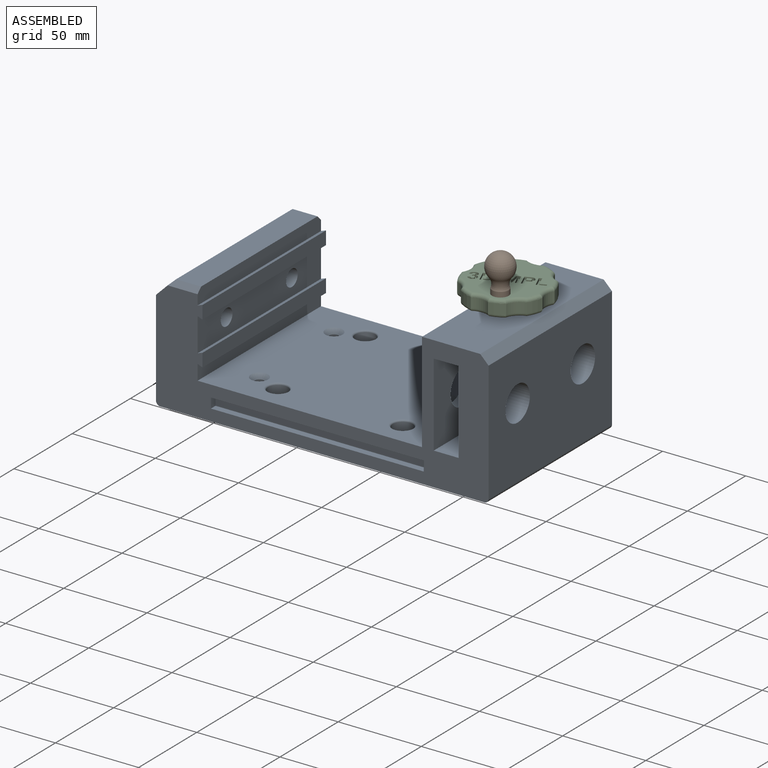
[diagram: assembled view]
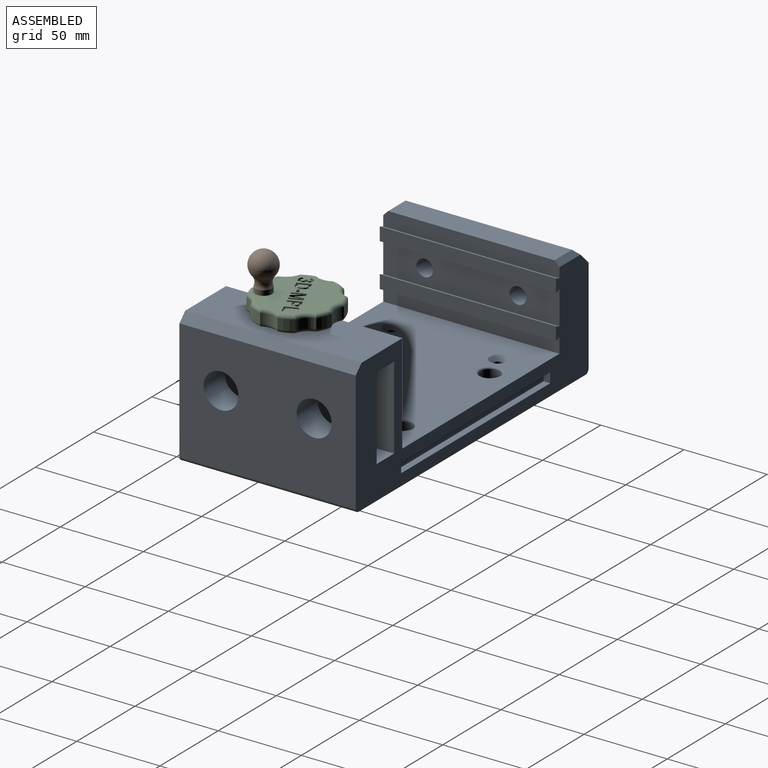
[diagram: assembled view, second angle]
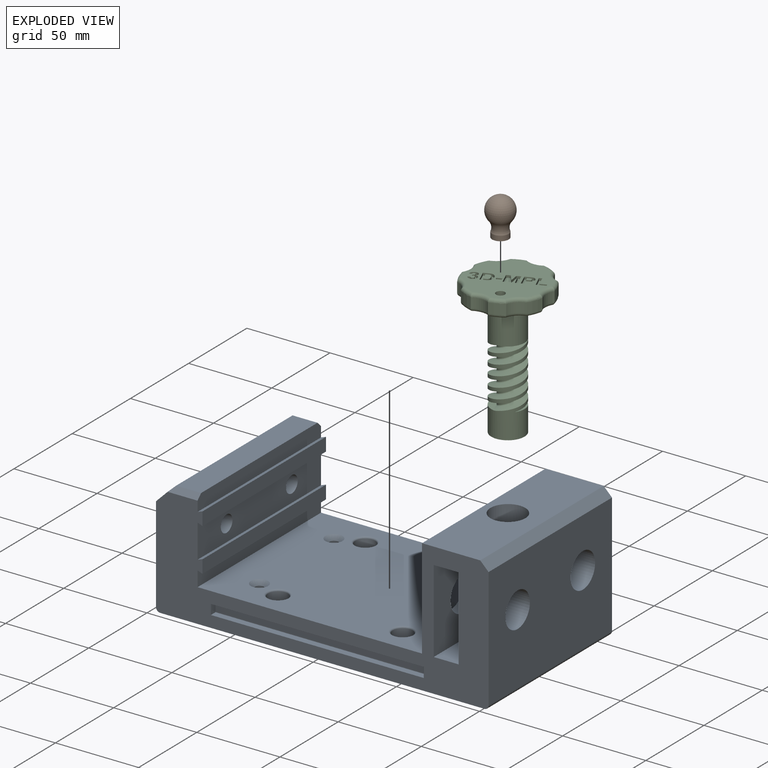
[diagram: exploded view]
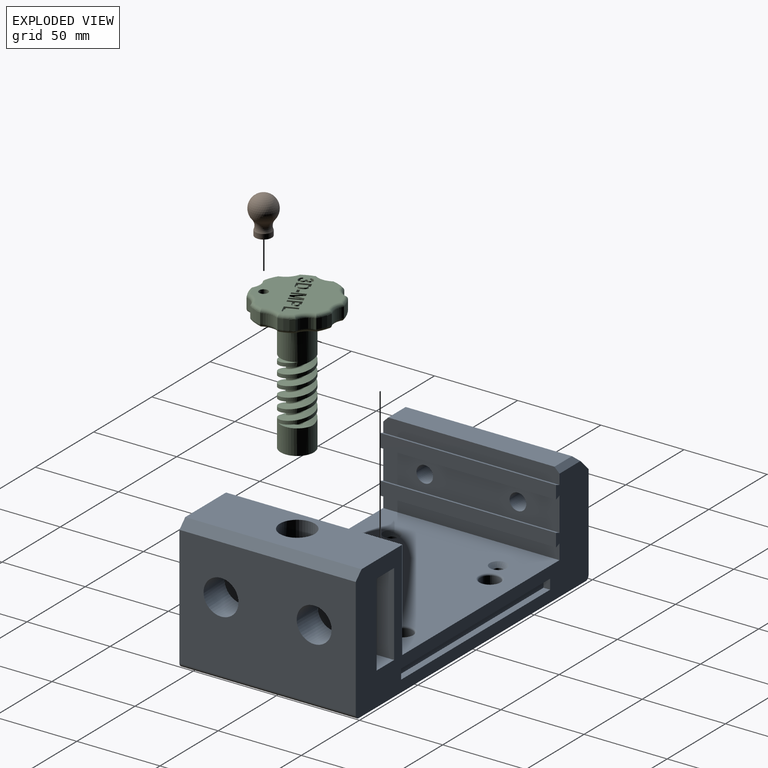
[diagram: exploded view, second angle]
ASSEMBLY  parts=3 mates=2
PART A: 86 faces, bbox 200x106x80 mm
  f0: plane 106x20.18mm, normal (1,0,0), area 1982.4mm2, adj f2,f18,f30,f31,f42,f46
  f1: plane 106x9.09mm, normal (1,0,0), area 963.7mm2, adj f2,f13,f18,f47
  f2: plane 200x80mm, normal (0,1,0), area 6058.8mm2, adj f0,f1,f4,f6,f9,f10,f11,f12
  f3: plane 45.65x15mm, normal (0,0,1), area 652.2mm2, adj f5,f18,f21,f25
  f4: plane 50x45.65mm, normal (-1,0,0), area 1936.2mm2, adj f2,f6,f7,f23,f25
  f5: plane 50x45.65mm, normal (1,0,0), area 1936.2mm2, adj f3,f18,f20,f24,f25
  f6: plane 45.65x15mm, normal (0,0,-1), area 652.2mm2, adj f2,f4,f22,f25
  f7: cylinder r=10.5mm len=21mm, axis (-1,0,0), area 1187.5mm2, adj f4,f10
  f8: cylinder r=10.5mm len=21mm, axis (-1,0,0), area 1187.5mm2, adj f10,f21
  f9: plane 195x106mm, normal (0,0,-1), area 19737.5mm2, adj f2,f18,f29,f51,f52,f59,f60,f61
  f10: plane 106x72.5mm, normal (1,0,0), area 6992.3mm2, adj f2,f7,f8,f18,f48,f51
  f11: plane 106x35mm, normal (0,0,1), area 3363.6mm2, adj f2,f12,f18,f25,f48
  f12: plane 106x60mm, normal (-1,0,0), area 5667.3mm2, adj f2,f11,f13,f18,f19,f20
  f13: plane 135x106mm, normal (0,0,1), area 13441.8mm2, adj f1,f2,f12,f18,f56,f57,f58,f79
  f14: plane 106x9.09mm, normal (1,0,0), area 954.7mm2, adj f2,f15,f18,f44,f49,f50
  f15: plane 100x15mm, normal (0,0,1), area 1500mm2, adj f14,f16,f49,f50
  f16: plane 106x10mm, normal (-0.71,0,0.71), area 1486.3mm2, adj f2,f15,f17,f18,f49,f50
  f17: plane 106x57.5mm, normal (-1,0,0), area 5937.9mm2, adj f2,f16,f18,f30,f31,f52
  f18: plane 200x80mm, normal (0,-1,0), area 6058.8mm2, adj f0,f1,f3,f5,f9,f10,f11,f12
  f19: cylinder r=10.5mm len=21mm, axis (-1,0,0), area 461.8mm2, adj f12,f22
  f20: cylinder r=10.5mm len=21mm, axis (-1,0,0), area 461.8mm2, adj f5,f12
  f21: plane 50x45.65mm, normal (-1,0,0), area 1936.2mm2, adj f3,f8,f18,f24,f25
  f22: plane 50x45.65mm, normal (1,0,0), area 1936.2mm2, adj f2,f6,f19,f23,f25
  f23: plane 45.65x15mm, normal (0,0,1), area 652.2mm2, adj f2,f4,f22,f25
  f24: plane 45.65x15mm, normal (0,0,-1), area 652.2mm2, adj f5,f18,f21,f25
  f25: cylinder r=10.5mm len=68mm, axis (0,0,1), area 2815.4mm2, adj f3,f4,f5,f6,f11,f21,f22,f23
  f26: plane 21x21mm, normal (0,0,1), area 192.4mm2, adj f25,f27
  f27: cylinder r=7mm len=14mm, axis (0,0,1), area 219.9mm2, adj f26,f28
  f28: plane 27x27mm, normal (0,0,-1), area 418.6mm2, adj f27,f29
  f29: cylinder r=13.5mm len=27mm, axis (0,0,-1), area 593.8mm2, adj f9,f28
  f30: cylinder r=5mm len=25mm, axis (1,0,0), area 785.4mm2, adj f0,f17
  f31: cylinder r=5mm len=25mm, axis (1,0,0), area 785.4mm2, adj f0,f17
  f32: plane 6x4mm, normal (-1,0,0), area 24mm2, adj f18,f33,f35,f36
  f33: plane 128x4mm, normal (0,0,1), area 512mm2, adj f18,f32,f34,f36
  f34: plane 6x4mm, normal (1,0,0), area 24mm2, adj f18,f33,f35,f36
  f35: plane 128x4mm, normal (0,0,-1), area 512mm2, adj f18,f32,f34,f36
  f36: plane 128x6mm, normal (0,-1,0), area 768mm2, adj f32,f33,f34,f35
  f37: plane 6x4mm, normal (-1,0,0), area 24mm2, adj f2,f38,f40,f41
  f38: plane 128x4mm, normal (0,0,-1), area 512mm2, adj f2,f37,f39,f41
  f39: plane 6x4mm, normal (1,0,0), area 24mm2, adj f2,f38,f40,f41
  f40: plane 128x4mm, normal (0,0,1), area 512mm2, adj f2,f37,f39,f41
  f41: plane 128x6mm, normal (0,1,0), area 768mm2, adj f37,f38,f39,f40
  f42: plane 106x3mm, normal (-0.34,0,-0.94), area 338.4mm2, adj f0,f2,f18,f43
  f43: plane 106x8mm, normal (1,0,0), area 848mm2, adj f2,f18,f42,f44
  f44: plane 106x3mm, normal (-0.34,0,0.94), area 338.4mm2, adj f2,f14,f18,f43
  f45: plane 106x8mm, normal (1,0,0), area 848mm2, adj f2,f18,f46,f47
  f46: plane 106x3mm, normal (-0.34,0,0.94), area 338.4mm2, adj f0,f2,f18,f45
  f47: plane 106x3mm, normal (-0.34,0,-0.94), area 338.4mm2, adj f1,f2,f18,f45
  f48: plane 106x5mm, normal (0.71,0,0.71), area 749.5mm2, adj f2,f10,f11,f18
  f49: plane 18x3mm, normal (0,0.71,0.71), area 70mm2, adj f2,f14,f15,f16
  f50: plane 18x3mm, normal (0,-0.71,0.71), area 70mm2, adj f14,f15,f16,f18
  f51: cylinder r=2.5mm len=106mm, axis (0,1,0), area 416.3mm2, adj f2,f9,f10,f18
  f52: cylinder r=2.5mm len=106mm, axis (0,1,0), area 416.3mm2, adj f2,f9,f17,f18
  f53: cylinder r=2.67mm len=15.5mm, axis (0,0,1), area 260.5mm2, adj f58,f60
  f54: cylinder r=2.67mm len=15.5mm, axis (0,0,1), area 260.5mm2, adj f56,f59
  f55: cylinder r=2.67mm len=15.5mm, axis (0,0,1), area 260.5mm2, adj f57,f61
  f56: cone r=2.67mm half-angle=45deg, axis (0,0,1), area 87.2mm2, adj f13,f54
  f57: cone r=2.67mm half-angle=45deg, axis (0,0,1), area 87.2mm2, adj f13,f55
  f58: cone r=2.67mm half-angle=45deg, axis (0,0,1), area 87.2mm2, adj f13,f53
  f59: cone r=4.68mm half-angle=45deg, axis (0,0,-1), area 65.3mm2, adj f9,f54
  f60: cone r=4.68mm half-angle=45deg, axis (0,0,-1), area 65.3mm2, adj f9,f53
  f61: cone r=4.68mm half-angle=45deg, axis (0,0,-1), area 65.3mm2, adj f9,f55
  f62: cylinder r=2.5mm len=12mm, axis (0,0,1), area 188.5mm2, adj f77,f84
  f63: plane 12x12mm, normal (0,0,1), area 74.6mm2, adj f64,f84
  f64: cylinder r=6mm len=12mm, axis (0,0,1), area 188.5mm2, adj f63,f85
  f65: cylinder r=2.5mm len=12mm, axis (0,0,1), area 188.5mm2, adj f76,f82
  f66: plane 12x12mm, normal (0,0,1), area 74.6mm2, adj f67,f82
  f67: cylinder r=6mm len=12mm, axis (0,0,1), area 188.5mm2, adj f66,f83
  f68: cylinder r=2.5mm len=12mm, axis (0,0,1), area 188.5mm2, adj f75,f80
  f69: plane 12x12mm, normal (0,0,1), area 74.6mm2, adj f70,f80
  f70: cylinder r=6mm len=12mm, axis (0,0,1), area 188.5mm2, adj f69,f81
  f71: cylinder r=2.5mm len=12mm, axis (0,0,1), area 188.5mm2, adj f74,f78
  f72: plane 12x12mm, normal (0,0,1), area 74.6mm2, adj f73,f78
  f73: cylinder r=6mm len=12mm, axis (0,0,1), area 188.5mm2, adj f72,f79
  f74: torus R=3.5mm, axis (0,0,1), area 28.3mm2, adj f9,f71
  f75: torus R=3.5mm, axis (0,0,1), area 28.3mm2, adj f9,f68
  f76: torus R=3.5mm, axis (0,0,1), area 28.3mm2, adj f9,f65
  f77: torus R=3.5mm, axis (0,0,1), area 28.3mm2, adj f9,f62
  f78: torus R=3.5mm, axis (0,0,1), area 28.3mm2, adj f71,f72
  f79: torus R=7mm, axis (0,0,-1), area 62.8mm2, adj f13,f73
  f80: torus R=3.5mm, axis (0,0,1), area 28.3mm2, adj f68,f69
  f81: torus R=7mm, axis (0,0,-1), area 62.8mm2, adj f13,f70
  f82: torus R=3.5mm, axis (0,0,1), area 28.3mm2, adj f65,f66
  f83: torus R=7mm, axis (0,0,-1), area 62.8mm2, adj f13,f67
  f84: torus R=3.5mm, axis (0,0,1), area 28.3mm2, adj f62,f63
  f85: torus R=7mm, axis (0,0,-1), area 62.8mm2, adj f13,f64
PART B: 6 faces, bbox 16x16x22.7 mm
  f0: plane 10x10mm, normal (0,0,-1), area 67.5mm2, adj f1,f4
  f1: cylinder r=5mm len=10mm, axis (0,0,-1), area 94.2mm2, adj f0,f2
  f2: torus R=10.5mm, axis (0,0,-1), area 208.8mm2, adj f1,f3
  f3: sphere r=8mm, area 668.1mm2, adj f2
  f4: cylinder r=1.88mm len=20mm, axis (0,0,-1), area 235.6mm2, adj f0,f5
  f5: plane 3.75x3.75mm, normal (0,0,-1), area 11mm2, adj f4
PART C: 156 faces, bbox 50.1x83.4x50.1 mm
  f0: plane 44.67x44.67mm, normal (0,1,0), area 1353.2mm2, adj f42,f44,f45,f46,f47,f48,f49,f50
  f1: cylinder r=25mm len=8.43mm, axis (0,-1,0), area 55mm2, adj f40,f41,f54,f71
  f2: cylinder r=25mm len=8.43mm, axis (0,-1,0), area 55mm2, adj f39,f40,f50,f67
  f3: cylinder r=25mm len=8.43mm, axis (0,-1,0), area 55mm2, adj f38,f39,f46,f63
  f4: cylinder r=25mm len=8.43mm, axis (0,-1,0), area 55mm2, adj f37,f38,f45,f60
  f5: cylinder r=25mm len=8.43mm, axis (0,-1,0), area 55mm2, adj f36,f37,f49,f64
  f6: cylinder r=25mm len=8.43mm, axis (0,-1,0), area 55mm2, adj f34,f36,f53,f68
  f7: cylinder r=25mm len=8.43mm, axis (0,-1,0), area 55mm2, adj f35,f41,f58,f75
  f8: bspline ~38.28x12.17mm, area 82.7mm2, adj f9,f12,f24,f27
  f9: cylinder r=5.55mm len=36mm, axis (0,-1,0), area 94mm2, adj f8,f10,f24,f27
  f10: bspline ~38.28x12.17mm, area 82.7mm2, adj f9,f11,f24,f27
  f11: bspline ~38.88x21.12mm, area 614.4mm2, adj f10,f18,f21,f22,f23,f24,f27
  f12: bspline ~38.88x21.12mm, area 614.3mm2, adj f8,f18,f19,f20,f21,f24,f27
  f13: bspline ~38.88x21.12mm, area 614.4mm2, adj f14,f18,f19,f20,f21,f25,f28
  f14: bspline ~38.28x12.17mm, area 82.7mm2, adj f13,f15,f25,f28
  f15: cylinder r=5.55mm len=36mm, axis (0,-1,0), area 94mm2, adj f14,f16,f25,f28
  f16: bspline ~38.28x12.17mm, area 82.7mm2, adj f15,f17,f25,f28
  f17: bspline ~38.88x21.12mm, area 614.3mm2, adj f16,f18,f21,f22,f23,f25,f28
  f18: cylinder r=10mm len=30.11mm, axis (0,-1,0), area 1400.7mm2, adj f11,f12,f13,f17,f19,f23,f27,f28
  f19: cylinder r=10mm len=20mm, axis (0,-1,0), area 130.3mm2, adj f12,f13,f18,f20
  f20: cylinder r=10mm len=20mm, axis (0,-1,0), area 130.3mm2, adj f12,f13,f19,f21
  f21: cylinder r=10mm len=24.61mm, axis (0,-1,0), area 1055.2mm2, adj f11,f12,f13,f17,f20,f22,f24,f25
  f22: cylinder r=10mm len=20mm, axis (0,-1,0), area 130.3mm2, adj f11,f17,f21,f23
  f23: cylinder r=10mm len=20mm, axis (0,-1,0), area 130.3mm2, adj f11,f17,f18,f22
  f24: plane 16.24x9.48mm, normal (0,1,0), area 54mm2, adj f8,f9,f10,f11,f12,f21
  f25: plane 16.24x9.48mm, normal (0,1,0), area 54mm2, adj f13,f14,f15,f16,f17,f21
  f26: plane 20x20mm, normal (0,-1,0), area 267mm2, adj f21,f33
  f27: plane 16.24x9.48mm, normal (0,-1,0), area 54mm2, adj f8,f9,f10,f11,f12,f18
  f28: plane 16.24x9.48mm, normal (0,-1,0), area 54mm2, adj f13,f14,f15,f16,f17,f18
  f29: cylinder r=25mm len=8.43mm, axis (0,-1,0), area 55mm2, adj f34,f35,f57,f72
  f30: plane 44.67x44.67mm, normal (0,-1,0), area 1044mm2, adj f43,f60,f61,f62,f63,f64,f65,f66
  f31: cylinder r=1.88mm len=23mm, axis (0,-1,0), area 271mm2, adj f32,f33
  f32: plane 3.75x3.75mm, normal (0,-1,0), area 11mm2, adj f31
  f33: cone r=1.88mm half-angle=45deg, axis (0,-1,0), area 51.1mm2, adj f26,f31
  f34: cylinder r=10mm len=10.39mm, axis (0,1,0), area 65.5mm2, adj f6,f29,f55,f70
  f35: cylinder r=10mm len=7.35mm, axis (0,1,0), area 65.5mm2, adj f7,f29,f59,f74
  f36: cylinder r=10mm len=7.35mm, axis (0,1,0), area 65.5mm2, adj f5,f6,f51,f66
  f37: cylinder r=10mm len=10.39mm, axis (0,1,0), area 65.5mm2, adj f4,f5,f47,f62
  f38: cylinder r=10mm len=7.35mm, axis (0,1,0), area 65.5mm2, adj f3,f4,f44,f61
  f39: cylinder r=10mm len=10.39mm, axis (0,1,0), area 65.5mm2, adj f2,f3,f48,f65
  f40: cylinder r=10mm len=7.35mm, axis (0,1,0), area 65.5mm2, adj f1,f2,f52,f69
  f41: cylinder r=10mm len=10.39mm, axis (0,1,0), area 65.5mm2, adj f1,f7,f56,f73
  f42: cylinder r=2.67mm len=7.5mm, axis (0,1,0), area 126.1mm2, adj f0,f43
  f43: cone r=5.17mm half-angle=45deg, axis (0,-1,0), area 87.2mm2, adj f30,f42
  f44: torus R=12mm, axis (0,1,0), area 34.4mm2, adj f0,f38,f45,f46
  f45: torus R=23mm, axis (0,1,0), area 25.6mm2, adj f0,f4,f44,f47
  f46: torus R=23mm, axis (0,1,0), area 25.6mm2, adj f0,f3,f44,f48
  f47: torus R=12mm, axis (0,1,0), area 34.4mm2, adj f0,f37,f45,f49
  f48: torus R=12mm, axis (0,1,0), area 34.4mm2, adj f0,f39,f46,f50
  f49: torus R=23mm, axis (0,1,0), area 25.6mm2, adj f0,f5,f47,f51
  f50: torus R=23mm, axis (0,1,0), area 25.6mm2, adj f0,f2,f48,f52
  f51: torus R=12mm, axis (0,1,0), area 34.4mm2, adj f0,f36,f49,f53
  f52: torus R=12mm, axis (0,1,0), area 34.4mm2, adj f0,f40,f50,f54
  f53: torus R=23mm, axis (0,1,0), area 25.6mm2, adj f0,f6,f51,f55
  f54: torus R=23mm, axis (0,1,0), area 25.6mm2, adj f0,f1,f52,f56
  f55: torus R=12mm, axis (0,1,0), area 34.4mm2, adj f0,f34,f53,f57
  f56: torus R=12mm, axis (0,1,0), area 34.4mm2, adj f0,f41,f54,f58
  f57: torus R=23mm, axis (0,1,0), area 25.6mm2, adj f0,f29,f55,f59
  f58: torus R=23mm, axis (0,1,0), area 25.6mm2, adj f0,f7,f56,f59
  f59: torus R=12mm, axis (0,1,0), area 34.4mm2, adj f0,f35,f57,f58
  f60: torus R=23mm, axis (0,1,0), area 25.6mm2, adj f4,f30,f61,f62
  f61: torus R=12mm, axis (0,1,0), area 34.4mm2, adj f30,f38,f60,f63
  f62: torus R=12mm, axis (0,1,0), area 34.4mm2, adj f30,f37,f60,f64
  f63: torus R=23mm, axis (0,1,0), area 25.6mm2, adj f3,f30,f61,f65
  f64: torus R=23mm, axis (0,1,0), area 25.6mm2, adj f5,f30,f62,f66
  f65: torus R=12mm, axis (0,1,0), area 34.4mm2, adj f30,f39,f63,f67
  f66: torus R=12mm, axis (0,1,0), area 34.4mm2, adj f30,f36,f64,f68
  f67: torus R=23mm, axis (0,1,0), area 25.6mm2, adj f2,f30,f65,f69
  f68: torus R=23mm, axis (0,1,0), area 25.6mm2, adj f6,f30,f66,f70
  f69: torus R=12mm, axis (0,1,0), area 34.4mm2, adj f30,f40,f67,f71
  f70: torus R=12mm, axis (0,1,0), area 34.4mm2, adj f30,f34,f68,f72
  f71: torus R=23mm, axis (0,1,0), area 25.6mm2, adj f1,f30,f69,f73
  f72: torus R=23mm, axis (0,1,0), area 25.6mm2, adj f29,f30,f70,f74
  f73: torus R=12mm, axis (0,1,0), area 34.4mm2, adj f30,f41,f71,f75
  f74: torus R=12mm, axis (0,1,0), area 34.4mm2, adj f30,f35,f72,f75
  f75: torus R=23mm, axis (0,1,0), area 25.6mm2, adj f7,f30,f73,f74
  f76: plane 5.17x2.14mm, normal (-0.38,0,-0.92), area 8.4mm2, adj f0,f77,f81,f82
  f77: plane 7.28x3.02mm, normal (0.92,0,-0.38), area 11.8mm2, adj f0,f76,f78,f82
  f78: plane 1.5x1.48mm, normal (0.38,0,0.92), area 2.4mm2, adj f0,f77,f79,f82
  f79: plane 6.05x2.51mm, normal (-0.92,0,0.38), area 9.8mm2, adj f0,f78,f80,f82
  f80: plane 3.69x1.53mm, normal (0.38,0,0.92), area 6mm2, adj f0,f79,f81,f82
  f81: plane 1.5x1.24mm, normal (-0.92,0,0.38), area 2mm2, adj f0,f76,f80,f82
  f82: plane 8.19x7.9mm, normal (0,1,0), area 18mm2, adj f76,f77,f78,f79,f80,f81
  f83: plane 1.5x1.38mm, normal (-0.38,0,-0.92), area 2.2mm2, adj f0,f84,f95,f96
  f84: plane 7.34x3.04mm, normal (0.92,0,-0.38), area 11.9mm2, adj f0,f83,f85,f96
  f85: plane 2.22x1.5mm, normal (0.38,0,0.92), area 3.6mm2, adj f0,f84,f86,f96
  f86: plane 4.46x3.41mm, normal (-0.79,0,0.61), area 8.4mm2, adj f0,f85,f87,f96
  f87: plane 5.55x1.5mm, normal (0.99,0,-0.14), area 8.4mm2, adj f0,f86,f88,f96
  f88: plane 2.22x1.5mm, normal (0.38,0,0.92), area 3.6mm2, adj f0,f87,f89,f96
  f89: plane 7.34x3.04mm, normal (-0.92,0,0.38), area 11.9mm2, adj f0,f88,f90,f96
  f90: plane 1.5x1.38mm, normal (-0.38,0,-0.92), area 2.2mm2, adj f0,f89,f91,f96
  f91: plane 5.78x2.39mm, normal (0.92,0,-0.38), area 9.4mm2, adj f0,f90,f92,f96
  f92: plane 6.38x1.5mm, normal (-0.99,0,0.15), area 9.7mm2, adj f0,f91,f93,f96
  f93: plane 1.5x1.43mm, normal (-0.38,0,-0.92), area 2.3mm2, adj f0,f92,f94,f96
  f94: plane 5.18x3.85mm, normal (0.8,0,-0.6), area 9.7mm2, adj f0,f93,f95,f96
  f95: plane 5.78x2.39mm, normal (-0.92,0,0.38), area 9.4mm2, adj f0,f83,f94,f96
  f96: plane 10.28x10.13mm, normal (0,1,0), area 43.4mm2, adj f83,f84,f85,f86,f87,f88,f89,f90
  f97: plane 1.5x1.48mm, normal (-0.38,0,-0.92), area 2.4mm2, adj f0,f98,f105,f106
  f98: plane 7.34x3.04mm, normal (0.92,0,-0.38), area 11.9mm2, adj f0,f97,f99,f106
  f99: plane 2.38x1.5mm, normal (0.38,0,0.92), area 3.9mm2, adj f0,f98,f100,f106
  f100: extruded ~1.81x1.5mm, area 2.9mm2, adj f0,f99,f101,f106
  f101: extruded ~2.37x1.55mm, area 4.6mm2, adj f0,f100,f102,f106
  f102: extruded ~2.89x1.5mm, area 4.9mm2, adj f0,f101,f103,f106
  f103: extruded ~1.5x1.49mm, area 2.5mm2, adj f0,f102,f104,f106
  f104: plane 1.5x0.97mm, normal (-0.38,0,-0.92), area 1.6mm2, adj f0,f103,f105,f106
  f105: plane 2.77x1.5mm, normal (-0.92,0,0.38), area 4.5mm2, adj f0,f97,f104,f106
  f106: plane 8.97x6.79mm, normal (0,1,0), area 26.7mm2, adj f97,f98,f99,f100,f101,f102,f103,f104
  f107: plane 1.5x0.72mm, normal (-0.38,0,-0.92), area 1.2mm2, adj f106,f108,f112,f153
  f108: extruded ~1.5x1.09mm, area 1.7mm2, adj f106,f107,f109,f153
  f109: extruded ~1.5x1.24mm, area 2.3mm2, adj f106,f108,f110,f153
  f110: extruded ~1.79x1.5mm, area 3.9mm2, adj f106,f109,f111,f153
  f111: plane 1.5x0.81mm, normal (0.38,0,0.92), area 1.3mm2, adj f106,f110,f112,f153
  f112: plane 2.08x1.5mm, normal (-0.92,0,0.38), area 3.4mm2, adj f106,f107,f111,f153
  f113: plane 2.76x1.5mm, normal (-0.38,0,-0.92), area 4.5mm2, adj f0,f114,f116,f117
  f114: plane 1.5x1.41mm, normal (0.92,0,-0.38), area 2.3mm2, adj f0,f113,f115,f117
  f115: plane 2.76x1.5mm, normal (0.38,0,0.92), area 4.5mm2, adj f0,f114,f116,f117
  f116: plane 1.5x1.41mm, normal (-0.92,0,0.38), area 2.3mm2, adj f0,f113,f115,f117
  f117: plane 3.35x2.55mm, normal (0,1,0), area 4.6mm2, adj f113,f114,f115,f116
  f118: extruded ~3.27x1.5mm, area 5.7mm2, adj f0,f119,f134,f135
  f119: plane 1.5x1.29mm, normal (0.49,0,0.87), area 2.2mm2, adj f0,f118,f120,f135
  f120: extruded ~1.5x1.49mm, area 2.7mm2, adj f0,f119,f121,f135
  f121: extruded ~1.65x1.5mm, area 2.9mm2, adj f0,f120,f122,f135
  f122: extruded ~1.5x1.46mm, area 2.8mm2, adj f0,f121,f123,f135
  f123: extruded ~1.5x0.6mm, area 1.1mm2, adj f0,f122,f124,f135
  f124: plane 1.5x1.21mm, normal (0.97,0,-0.25), area 1.9mm2, adj f0,f123,f125,f135
  f125: extruded ~1.5x1.43mm, area 2.8mm2, adj f0,f124,f126,f135
  f126: extruded ~1.5x1.14mm, area 2.1mm2, adj f0,f125,f127,f135
  f127: extruded ~1.5x1.37mm, area 2.4mm2, adj f0,f126,f128,f135
  f128: plane 1.5x1.39mm, normal (-0.22,0,-0.97), area 2.1mm2, adj f0,f127,f129,f135
  f129: extruded ~2.86x1.55mm, area 5.3mm2, adj f0,f128,f130,f135
  f130: extruded ~1.94x1.5mm, area 3mm2, adj f0,f129,f131,f135
  f131: extruded ~1.5x1.02mm, area 2.2mm2, adj f0,f130,f132,f135
  f132: extruded ~1.98x1.5mm, area 3.2mm2, adj f0,f131,f133,f135
  f133: extruded ~2.11x1.5mm, area 3.9mm2, adj f0,f132,f134,f135
  f134: extruded ~3.35x1.69mm, area 6.1mm2, adj f0,f118,f133,f135
  f135: plane 7.94x6.39mm, normal (0,1,0), area 21.4mm2, adj f118,f119,f120,f121,f122,f123,f124,f125
  f136: plane 7.34x3.04mm, normal (0.92,0,-0.38), area 11.9mm2, adj f0,f137,f144,f145
  f137: plane 2.71x1.5mm, normal (0.38,0,0.92), area 4.4mm2, adj f0,f136,f138,f145
  f138: extruded ~1.5x1.46mm, area 2.3mm2, adj f0,f137,f139,f145
  f139: extruded ~3.54x2.77mm, area 7.2mm2, adj f0,f138,f140,f145
  f140: extruded ~1.66x1.5mm, area 2.6mm2, adj f0,f139,f141,f145
  f141: extruded ~1.62x1.5mm, area 2.5mm2, adj f0,f140,f142,f145
  f142: extruded ~1.5x1.02mm, area 2mm2, adj f0,f141,f143,f145
  f143: extruded ~1.5x1.25mm, area 2.2mm2, adj f0,f142,f144,f145
  f144: plane 2.79x1.5mm, normal (-0.38,0,-0.92), area 4.5mm2, adj f0,f136,f143,f145
  f145: plane 8.92x8.14mm, normal (0,1,0), area 31.8mm2, adj f136,f137,f138,f139,f140,f141,f142,f143
  f146: plane 1.5x0.67mm, normal (-0.38,0,-0.92), area 1.1mm2, adj f145,f147,f152,f154
  f147: extruded ~1.5x1.25mm, area 2mm2, adj f145,f146,f148,f154
  f148: extruded ~2.24x1.87mm, area 4.8mm2, adj f145,f147,f149,f154
  f149: extruded ~2.83x1.5mm, area 4.6mm2, adj f145,f148,f150,f154
  f150: extruded ~1.5x0.87mm, area 1.5mm2, adj f145,f149,f151,f154
  f151: plane 1.5x1.11mm, normal (0.38,0,0.92), area 1.8mm2, adj f145,f150,f152,f154
  f152: plane 4.86x2.01mm, normal (-0.92,0,0.38), area 7.9mm2, adj f145,f146,f151,f154
  f153: plane 3.14x2.8mm, normal (0,1,0), area 5.8mm2, adj f107,f108,f109,f110,f111,f112
  f154: plane 5.6x4.57mm, normal (0,1,0), area 16.4mm2, adj f146,f147,f148,f149,f150,f151,f152
  f155: cone r=11.5mm half-angle=45deg, axis (0,1,0), area 143.3mm2, adj f18,f30
PLACE A t=(0.06,0,0)mm
PLACE B t=(88.57,-15.71,75)mm
PLACE C rot(axis=(1,0,0),90deg) t=(82.06,0,25)mm
MATE revolute C.f42 <-> B.f1  axis (0,0,1) through (88.57,-15.71,75)mm
MATE revolute A.f25 <-> C.f1  axis (0,0,1) through (82.06,0,-8)mm
